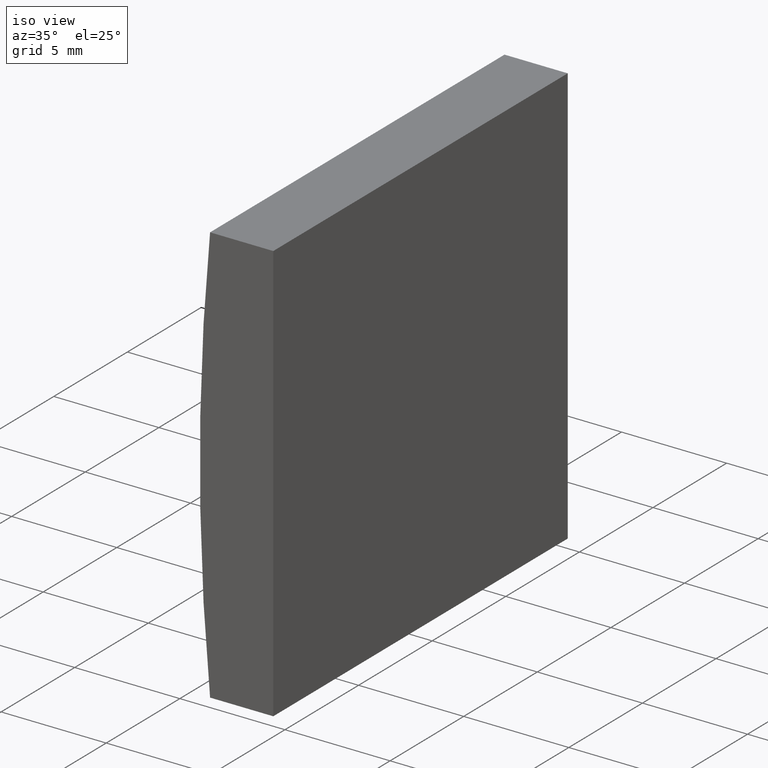
[diagram: clean part render]
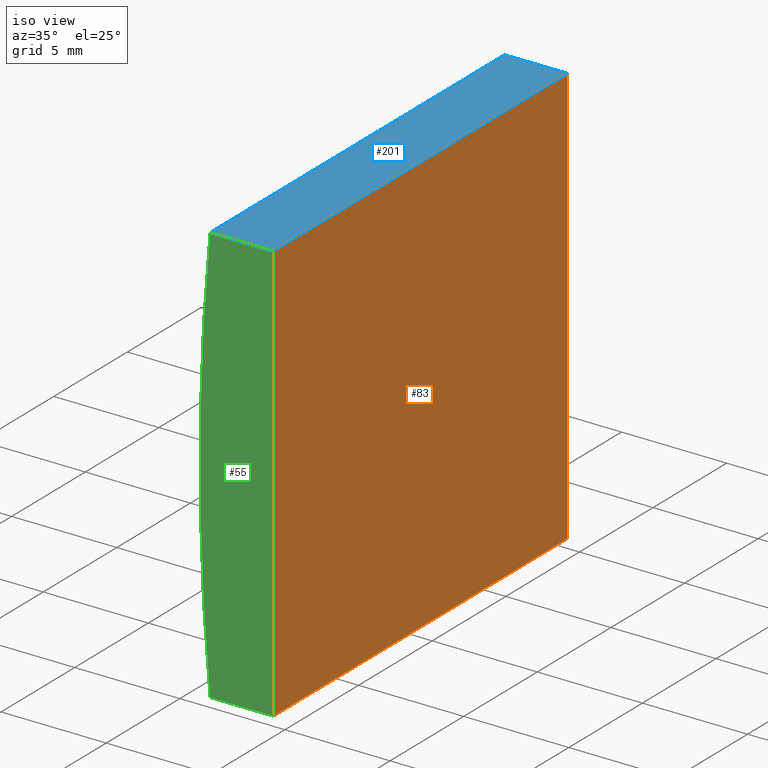
[diagram: same view with three faces highlighted in distinct colors, each labeled with its STEP entity id]
A machine part, iso view with three faces highlighted in distinct colors.
Their STEP definitions:

[orange] entity #83 — the highlighted planar face has unit normal (-1, 0, 0).
#1 = VECTOR ( 'NONE', #173, 1000.000000000000000 ) ;
#4 = FACE_OUTER_BOUND ( 'NONE', #10, .T. ) ;
#5 = CARTESIAN_POINT ( 'NONE',  ( -95.55479566514874500, 0.0000000000000000000, -9.999999999999985800 ) ) ;
#10 = EDGE_LOOP ( 'NONE', ( #91, #63, #113, #126 ) ) ;
#16 = VERTEX_POINT ( 'NONE', #185 ) ;
#35 = DIRECTION ( 'NONE',  ( -1.000000000000000000, 0.0000000000000000000, 0.0000000000000000000 ) ) ;
#36 = CARTESIAN_POINT ( 'NONE',  ( -95.55479566514874500, 20.00000000000000000, -9.999999999999985800 ) ) ;
#45 = EDGE_CURVE ( 'NONE', #16, #123, #100, .T. ) ;
#46 = EDGE_CURVE ( 'NONE', #16, #109, #112, .T. ) ;
#49 = LINE ( 'NONE', #180, #1 ) ;
#60 = CARTESIAN_POINT ( 'NONE',  ( -95.55479566514874500, 20.00000000000000000, -9.999999999999985800 ) ) ;
#63 = ORIENTED_EDGE ( 'NONE', *, *, #199, .F. ) ;
#70 = VECTOR ( 'NONE', #155, 1000.000000000000000 ) ;
#83 = ADVANCED_FACE ( 'NONE', ( #4 ), #168, .F. ) ;
#85 = CARTESIAN_POINT ( 'NONE',  ( -95.55479566514874500, 20.00000000000000000, -9.999999999999985800 ) ) ;
#86 = LINE ( 'NONE', #5, #146 ) ;
#91 = ORIENTED_EDGE ( 'NONE', *, *, #164, .T. ) ;
#100 = LINE ( 'NONE', #158, #70 ) ;
#109 = VERTEX_POINT ( 'NONE', #85 ) ;
#112 = LINE ( 'NONE', #60, #196 ) ;
#113 = ORIENTED_EDGE ( 'NONE', *, *, #46, .F. ) ;
#116 = CARTESIAN_POINT ( 'NONE',  ( -95.55479566514874500, 0.0000000000000000000, 10.00000000000000000 ) ) ;
#121 = DIRECTION ( 'NONE',  ( -0.0000000000000000000, -0.0000000000000000000, -1.000000000000000000 ) ) ;
#123 = VERTEX_POINT ( 'NONE', #116 ) ;
#126 = ORIENTED_EDGE ( 'NONE', *, *, #45, .T. ) ;
#127 = VERTEX_POINT ( 'NONE', #136 ) ;
#134 = DIRECTION ( 'NONE',  ( -0.0000000000000000000, -0.0000000000000000000, -1.000000000000000000 ) ) ;
#136 = CARTESIAN_POINT ( 'NONE',  ( -95.55479566514874500, 0.0000000000000000000, -9.999999999999985800 ) ) ;
#146 = VECTOR ( 'NONE', #121, 1000.000000000000000 ) ;
#155 = DIRECTION ( 'NONE',  ( -0.0000000000000000000, -1.000000000000000000, -0.0000000000000000000 ) ) ;
#158 = CARTESIAN_POINT ( 'NONE',  ( -95.55479566514874500, 20.00000000000000000, 10.00000000000000000 ) ) ;
#164 = EDGE_CURVE ( 'NONE', #123, #127, #86, .T. ) ;
#168 = PLANE ( 'NONE',  #204 ) ;
#173 = DIRECTION ( 'NONE',  ( -0.0000000000000000000, -1.000000000000000000, -0.0000000000000000000 ) ) ;
#180 = CARTESIAN_POINT ( 'NONE',  ( -95.55479566514874500, 20.00000000000000000, -9.999999999999985800 ) ) ;
#185 = CARTESIAN_POINT ( 'NONE',  ( -95.55479566514874500, 20.00000000000000000, 10.00000000000000000 ) ) ;
#196 = VECTOR ( 'NONE', #134, 1000.000000000000000 ) ;
#199 = EDGE_CURVE ( 'NONE', #109, #127, #49, .T. ) ;
#200 = DIRECTION ( 'NONE',  ( 0.0000000000000000000, 0.0000000000000000000, 1.000000000000000000 ) ) ;
#204 = AXIS2_PLACEMENT_3D ( 'NONE', #36, #35, #200 ) ;

[blue] entity #201 — the highlighted planar face has unit normal (0, 0, -1).
#3 = ORIENTED_EDGE ( 'NONE', *, *, #18, .T. ) ;
#12 = CARTESIAN_POINT ( 'NONE',  ( -98.56010064939296500, 0.0000000000000000000, 10.00000000000000000 ) ) ;
#16 = VERTEX_POINT ( 'NONE', #185 ) ;
#18 = EDGE_CURVE ( 'NONE', #176, #123, #22, .T. ) ;
#22 = LINE ( 'NONE', #12, #138 ) ;
#23 = CARTESIAN_POINT ( 'NONE',  ( -98.56010064939296500, 20.00000000000000000, 10.00000000000000000 ) ) ;
#41 = CARTESIAN_POINT ( 'NONE',  ( -98.56010064939296500, 0.0000000000000000000, 10.00000000000000000 ) ) ;
#45 = EDGE_CURVE ( 'NONE', #16, #123, #100, .T. ) ;
#62 = FACE_OUTER_BOUND ( 'NONE', #125, .T. ) ;
#67 = LINE ( 'NONE', #169, #97 ) ;
#70 = VECTOR ( 'NONE', #155, 1000.000000000000000 ) ;
#73 = ORIENTED_EDGE ( 'NONE', *, *, #45, .F. ) ;
#74 = DIRECTION ( 'NONE',  ( 1.000000000000000000, 0.0000000000000000000, 0.0000000000000000000 ) ) ;
#81 = CARTESIAN_POINT ( 'NONE',  ( -98.56010064939296500, 20.00000000000000000, 10.00000000000000000 ) ) ;
#97 = VECTOR ( 'NONE', #154, 1000.000000000000000 ) ;
#100 = LINE ( 'NONE', #158, #70 ) ;
#115 = PLANE ( 'NONE',  #128 ) ;
#116 = CARTESIAN_POINT ( 'NONE',  ( -95.55479566514874500, 0.0000000000000000000, 10.00000000000000000 ) ) ;
#119 = CARTESIAN_POINT ( 'NONE',  ( -98.56010064939296500, 20.00000000000000000, 10.00000000000000000 ) ) ;
#123 = VERTEX_POINT ( 'NONE', #116 ) ;
#124 = DIRECTION ( 'NONE',  ( -0.0000000000000000000, -1.000000000000000000, -0.0000000000000000000 ) ) ;
#125 = EDGE_LOOP ( 'NONE', ( #3, #73, #203, #140 ) ) ;
#128 = AXIS2_PLACEMENT_3D ( 'NONE', #81, #170, #177 ) ;
#138 = VECTOR ( 'NONE', #74, 1000.000000000000000 ) ;
#140 = ORIENTED_EDGE ( 'NONE', *, *, #175, .T. ) ;
#144 = LINE ( 'NONE', #119, #163 ) ;
#154 = DIRECTION ( 'NONE',  ( 1.000000000000000000, 0.0000000000000000000, 0.0000000000000000000 ) ) ;
#155 = DIRECTION ( 'NONE',  ( -0.0000000000000000000, -1.000000000000000000, -0.0000000000000000000 ) ) ;
#158 = CARTESIAN_POINT ( 'NONE',  ( -95.55479566514874500, 20.00000000000000000, 10.00000000000000000 ) ) ;
#161 = VERTEX_POINT ( 'NONE', #23 ) ;
#163 = VECTOR ( 'NONE', #124, 1000.000000000000000 ) ;
#169 = CARTESIAN_POINT ( 'NONE',  ( -98.56010064939296500, 20.00000000000000000, 10.00000000000000000 ) ) ;
#170 = DIRECTION ( 'NONE',  ( 0.0000000000000000000, 0.0000000000000000000, -1.000000000000000000 ) ) ;
#175 = EDGE_CURVE ( 'NONE', #161, #176, #144, .T. ) ;
#176 = VERTEX_POINT ( 'NONE', #41 ) ;
#177 = DIRECTION ( 'NONE',  ( -1.000000000000000000, 0.0000000000000000000, -0.0000000000000000000 ) ) ;
#185 = CARTESIAN_POINT ( 'NONE',  ( -95.55479566514874500, 20.00000000000000000, 10.00000000000000000 ) ) ;
#201 = ADVANCED_FACE ( 'NONE', ( #62 ), #115, .F. ) ;
#202 = EDGE_CURVE ( 'NONE', #161, #16, #67, .T. ) ;
#203 = ORIENTED_EDGE ( 'NONE', *, *, #202, .F. ) ;

[green] entity #55 — the highlighted planar face has unit normal (0, 1, 0).
#5 = CARTESIAN_POINT ( 'NONE',  ( -95.55479566514874500, 0.0000000000000000000, -9.999999999999985800 ) ) ;
#8 = EDGE_LOOP ( 'NONE', ( #53, #178, #52, #167 ) ) ;
#12 = CARTESIAN_POINT ( 'NONE',  ( -98.56010064939296500, 0.0000000000000000000, 10.00000000000000000 ) ) ;
#14 = LINE ( 'NONE', #17, #30 ) ;
#17 = CARTESIAN_POINT ( 'NONE',  ( -98.56010064939295000, 0.0000000000000000000, -10.00000000000000000 ) ) ;
#18 = EDGE_CURVE ( 'NONE', #176, #123, #22, .T. ) ;
#22 = LINE ( 'NONE', #12, #138 ) ;
#25 = DIRECTION ( 'NONE',  ( 0.0000000000000000000, -0.0000000000000000000, 1.000000000000000000 ) ) ;
#28 = DIRECTION ( 'NONE',  ( 0.0000000000000000000, 1.000000000000000000, 0.0000000000000000000 ) ) ;
#30 = VECTOR ( 'NONE', #133, 1000.000000000000000 ) ;
#33 = AXIS2_PLACEMENT_3D ( 'NONE', #37, #172, #25 ) ;
#37 = CARTESIAN_POINT ( 'NONE',  ( 4.355204334851265500, 0.0000000000000000000, 4.286263797015675000E-017 ) ) ;
#41 = CARTESIAN_POINT ( 'NONE',  ( -98.56010064939296500, 0.0000000000000000000, 10.00000000000000000 ) ) ;
#47 = EDGE_CURVE ( 'NONE', #99, #176, #82, .T. ) ;
#50 = PLANE ( 'NONE',  #33 ) ;
#52 = ORIENTED_EDGE ( 'NONE', *, *, #164, .F. ) ;
#53 = ORIENTED_EDGE ( 'NONE', *, *, #47, .F. ) ;
#55 = ADVANCED_FACE ( 'NONE', ( #71 ), #50, .F. ) ;
#58 = AXIS2_PLACEMENT_3D ( 'NONE', #87, #28, #166 ) ;
#65 = EDGE_CURVE ( 'NONE', #127, #99, #14, .T. ) ;
#71 = FACE_OUTER_BOUND ( 'NONE', #8, .T. ) ;
#74 = DIRECTION ( 'NONE',  ( 1.000000000000000000, 0.0000000000000000000, 0.0000000000000000000 ) ) ;
#82 = CIRCLE ( 'NONE', #58, 103.4000000000000200 ) ;
#86 = LINE ( 'NONE', #5, #146 ) ;
#87 = CARTESIAN_POINT ( 'NONE',  ( 4.355204334851265500, 0.0000000000000000000, 4.286263797015675000E-017 ) ) ;
#95 = CARTESIAN_POINT ( 'NONE',  ( -98.56010064939295000, 0.0000000000000000000, -10.00000000000000000 ) ) ;
#99 = VERTEX_POINT ( 'NONE', #95 ) ;
#116 = CARTESIAN_POINT ( 'NONE',  ( -95.55479566514874500, 0.0000000000000000000, 10.00000000000000000 ) ) ;
#121 = DIRECTION ( 'NONE',  ( -0.0000000000000000000, -0.0000000000000000000, -1.000000000000000000 ) ) ;
#123 = VERTEX_POINT ( 'NONE', #116 ) ;
#127 = VERTEX_POINT ( 'NONE', #136 ) ;
#133 = DIRECTION ( 'NONE',  ( -1.000000000000000000, -0.0000000000000000000, -4.617763548315712200E-015 ) ) ;
#136 = CARTESIAN_POINT ( 'NONE',  ( -95.55479566514874500, 0.0000000000000000000, -9.999999999999985800 ) ) ;
#138 = VECTOR ( 'NONE', #74, 1000.000000000000000 ) ;
#146 = VECTOR ( 'NONE', #121, 1000.000000000000000 ) ;
#164 = EDGE_CURVE ( 'NONE', #123, #127, #86, .T. ) ;
#166 = DIRECTION ( 'NONE',  ( 0.0000000000000000000, 0.0000000000000000000, 1.000000000000000000 ) ) ;
#167 = ORIENTED_EDGE ( 'NONE', *, *, #18, .F. ) ;
#172 = DIRECTION ( 'NONE',  ( 0.0000000000000000000, 1.000000000000000000, 0.0000000000000000000 ) ) ;
#176 = VERTEX_POINT ( 'NONE', #41 ) ;
#178 = ORIENTED_EDGE ( 'NONE', *, *, #65, .F. ) ;